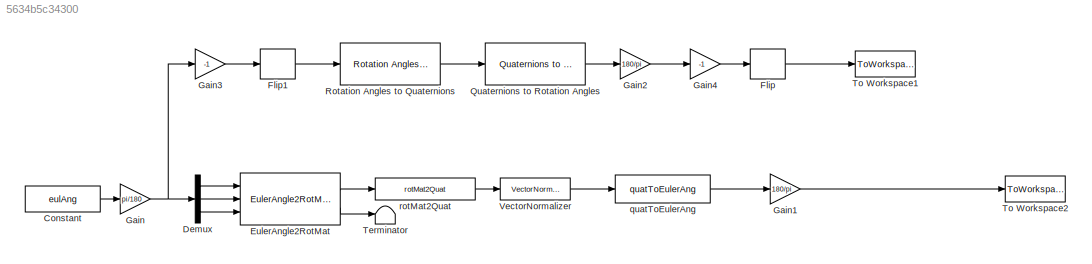
MODEL slx_5634b5c34300
KIND model
CONFIG AbsTol = auto
CONFIG EnableMultiTasking = off
CONFIG FixedStep = auto
CONFIG MaxStep = auto
CONFIG MinStep = auto
CONFIG RelTol = 1e-3
CONFIG SampleTimeConstraint = Unconstrained
CONFIG Solver = VariableStepAuto
CONFIG SolverName = VariableStepAuto
CONFIG StartTime = 0.0
CONFIG StopTime = 0
BLOCK [Constant] Constant
  Value = eulAng
BLOCK [Demux] Demux
  DisplayOption = bar
  Outputs = 3
  Ports = [1, 3]
BLOCK [Reference] EulerAngle2RotMat  REF=eulAng2RotMat_ul/EulerAngle2RotMat
  Ports = [3, 2]
  SourceBlock = eulAng2RotMat_ul/EulerAngle2RotMat
  SourceType = SubSystem
BLOCK [DSPFlip] Flip
BLOCK [DSPFlip] Flip1
BLOCK [Gain] Gain
  Gain = pi/180
  OutDataTypeStr = Inherit: Inherit via internal rule
  ParamDataTypeStr = Inherit: Inherit via internal rule
  SaturateOnIntegerOverflow = off
BLOCK [Gain] Gain1
  Gain = 180/pi
  OutDataTypeStr = Inherit: Inherit via internal rule
  ParamDataTypeStr = Inherit: Inherit via internal rule
  SaturateOnIntegerOverflow = off
BLOCK [Gain] Gain2
  Gain = 180/pi
  OutDataTypeStr = Inherit: Inherit via internal rule
  ParamDataTypeStr = Inherit: Inherit via internal rule
  SaturateOnIntegerOverflow = off
BLOCK [Gain] Gain3
  Gain = -1
  OutDataTypeStr = Inherit: Inherit via internal rule
  ParamDataTypeStr = Inherit: Inherit via internal rule
  SaturateOnIntegerOverflow = off
BLOCK [Gain] Gain4
  Gain = -1
  OutDataTypeStr = Inherit: Inherit via internal rule
  ParamDataTypeStr = Inherit: Inherit via internal rule
  SaturateOnIntegerOverflow = off
BLOCK [Reference] Quaternions to Rotation Angles  REF=sharedtransform/Quaternions to Rotation Angles
  AttributesFormatString = Rotation Order: %<rotationOrder>
  Ports = [1, 1]
  SourceBlock = sharedtransform/Quaternions to Rotation Angles
  SourceProductBaseCode = AE
  SourceProductName = Aerospace Blockset
  SourceType = Quat2Ang
BLOCK [Reference] Rotation Angles to Quaternions  REF=sharedtransform/Rotation Angles to Quaternions
  AttributesFormatString = Rotation Order: %<rotationOrder>
  Ports = [1, 1]
  SourceBlock = sharedtransform/Rotation Angles to Quaternions
  SourceProductBaseCode = AE
  SourceProductName = Aerospace Blockset
  SourceType = Ang2Quat
BLOCK [Terminator] Terminator
BLOCK [ToWorkspace] To Workspace1
  FixptAsFi = on
  MaxDataPoints = inf
  Ports = [1]
  SampleTime = -1
  Save2DSignal = 3-D array (concatenate along third dimension)
  SaveFormat = Timeseries
  VariableName = simout
BLOCK [ToWorkspace] To Workspace2
  FixptAsFi = on
  MaxDataPoints = inf
  Ports = [1]
  SampleTime = -1
  Save2DSignal = 3-D array (concatenate along third dimension)
  SaveFormat = Timeseries
  VariableName = simout1
BLOCK [Reference] VectorNormalizer   REF=vectorNormalizer_ul/VectorNormalizer

  Ports = [1, 1]
  SourceBlock = vectorNormalizer_ul/VectorNormalizer
  SourceType = SubSystem
BLOCK [Reference] quatToEulerAng  REF=quat2EulerAng_ul/quatToEulerAng
  Ports = [1, 1]
  SourceBlock = quat2EulerAng_ul/quatToEulerAng
  SourceType = SubSystem
BLOCK [Reference] rotMat2Quat  REF=rotMat2Quat_ul/rotMat2Quat
  Ports = [1, 1]
  SourceBlock = rotMat2Quat_ul/rotMat2Quat
  SourceType = SubSystem
LINE Constant:1 -> Gain:1
LINE Demux:1 -> EulerAngle2RotMat:1
LINE Demux:2 -> EulerAngle2RotMat:2
LINE Demux:3 -> EulerAngle2RotMat:3
LINE EulerAngle2RotMat:1 -> rotMat2Quat:1
LINE EulerAngle2RotMat:2 -> Terminator:1
LINE Flip1:1 -> Rotation Angles to Quaternions:1
LINE Flip:1 -> To Workspace1:1
LINE Gain1:1 -> To Workspace2:1
LINE Gain2:1 -> Gain4:1
LINE Gain3:1 -> Flip1:1
LINE Gain4:1 -> Flip:1
NET Gain:1 -> Demux:1, Gain3:1
LINE Quaternions to Rotation Angles:1 -> Gain2:1
LINE Rotation Angles to Quaternions:1 -> Quaternions to Rotation Angles:1
LINE VectorNormalizer :1 -> quatToEulerAng:1
LINE quatToEulerAng:1 -> Gain1:1
LINE rotMat2Quat:1 -> VectorNormalizer :1
note: NET lines group one-source signal fan-out (src -> all destinations, sorted); 1:1 wires keep LINE
